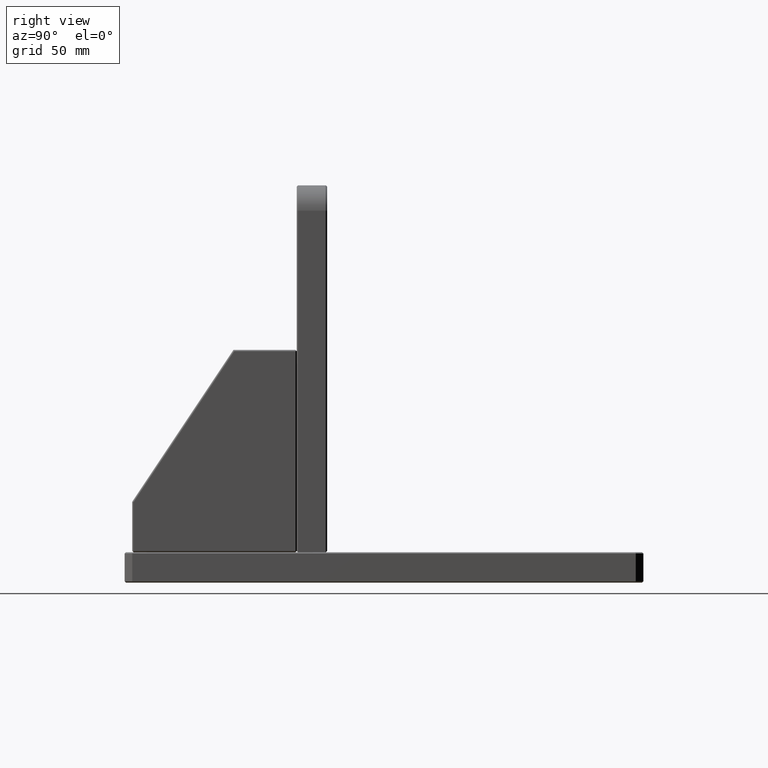
[diagram: clean part render]
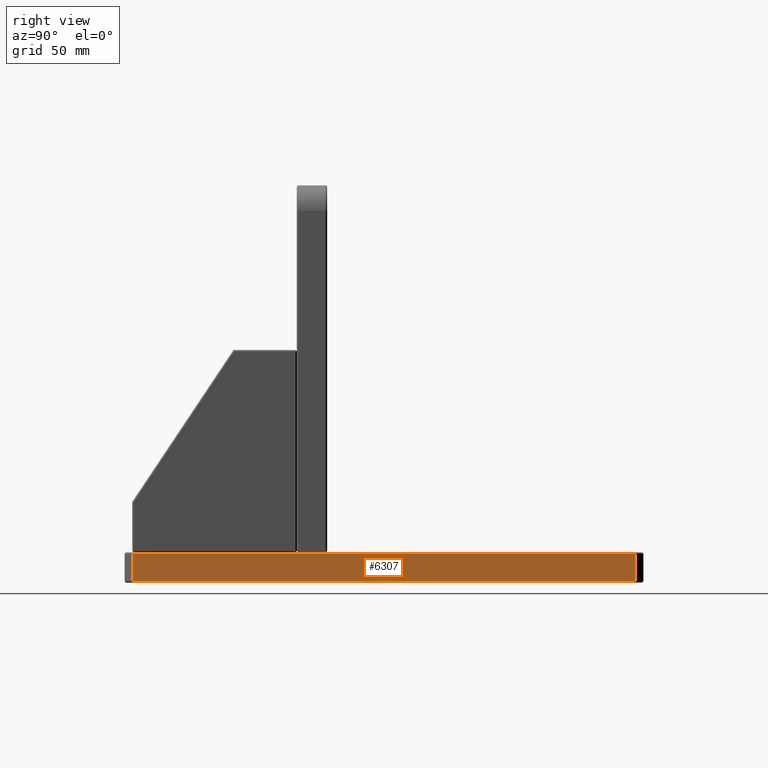
[diagram: same view with one face highlighted and labeled with its STEP entity id]
A machine part, right view. The second image highlights one B-rep face of the part: STEP entity #6307.
In plain terms, the highlighted planar face has unit normal (-1, 0, 0).
Its self-contained STEP definition (entity closure, byte-faithful):
#93 = EDGE_CURVE ( 'NONE', #7958, #12319, #801, .T. ) ;
#521 = VECTOR ( 'NONE', #7328, 1000.000000000000000 ) ;
#801 = LINE ( 'NONE', #11786, #521 ) ;
#1030 = CARTESIAN_POINT ( 'NONE',  ( 65.00000000000000000, 102.5000000000000000, 11.50000000000000000 ) ) ;
#1059 = DIRECTION ( 'NONE',  ( 0.0000000000000000000, 1.000000000000000000, 0.0000000000000000000 ) ) ;
#1634 = ORIENTED_EDGE ( 'NONE', *, *, #6890, .T. ) ;
#2089 = CARTESIAN_POINT ( 'NONE',  ( 65.00000000000000000, -99.49999999999998579, 11.49999999999999822 ) ) ;
#2129 = ORIENTED_EDGE ( 'NONE', *, *, #14656, .T. ) ;
#2342 = LINE ( 'NONE', #10462, #4666 ) ;
#2394 = LINE ( 'NONE', #1030, #8520 ) ;
#4666 = VECTOR ( 'NONE', #1059, 1000.000000000000000 ) ;
#4905 = CARTESIAN_POINT ( 'NONE',  ( 65.00000000000000000, 99.49999999999998579, 12.00000000000000000 ) ) ;
#5278 = ORIENTED_EDGE ( 'NONE', *, *, #93, .T. ) ;
#6307 = ADVANCED_FACE ( 'NONE', ( #11784 ), #14391, .F. ) ;
#6337 = DIRECTION ( 'NONE',  ( -1.000000000000000000, 0.0000000000000000000, 0.0000000000000000000 ) ) ;
#6890 = EDGE_CURVE ( 'NONE', #12319, #9956, #2342, .T. ) ;
#7328 = DIRECTION ( 'NONE',  ( 0.0000000000000000000, 0.0000000000000000000, -1.000000000000000000 ) ) ;
#7958 = VERTEX_POINT ( 'NONE', #2089 ) ;
#7986 = VERTEX_POINT ( 'NONE', #12709 ) ;
#8085 = CARTESIAN_POINT ( 'NONE',  ( 65.00000000000000000, 99.49999999999998579, 0.4999999999999726885 ) ) ;
#8520 = VECTOR ( 'NONE', #17058, 1000.000000000000000 ) ;
#8584 = VECTOR ( 'NONE', #15807, 1000.000000000000000 ) ;
#8929 = EDGE_CURVE ( 'NONE', #9956, #7986, #15715, .T. ) ;
#9956 = VERTEX_POINT ( 'NONE', #8085 ) ;
#10278 = CARTESIAN_POINT ( 'NONE',  ( 65.00000000000000000, 102.5000000000000000, 12.00000000000000000 ) ) ;
#10462 = CARTESIAN_POINT ( 'NONE',  ( 65.00000000000000000, 99.49999999999998579, 0.4999999999999726885 ) ) ;
#10511 = CARTESIAN_POINT ( 'NONE',  ( 65.00000000000000000, -99.49999999999998579, 0.4999999999999726885 ) ) ;
#11784 = FACE_OUTER_BOUND ( 'NONE', #14942, .T. ) ;
#11786 = CARTESIAN_POINT ( 'NONE',  ( 65.00000000000000000, -99.49999999999998579, 12.00000000000000000 ) ) ;
#11952 = DIRECTION ( 'NONE',  ( 0.0000000000000000000, 0.0000000000000000000, 1.000000000000000000 ) ) ;
#12319 = VERTEX_POINT ( 'NONE', #10511 ) ;
#12445 = ORIENTED_EDGE ( 'NONE', *, *, #8929, .T. ) ;
#12709 = CARTESIAN_POINT ( 'NONE',  ( 65.00000000000000000, 99.49999999999998579, 11.50000000000000000 ) ) ;
#14391 = PLANE ( 'NONE',  #15211 ) ;
#14656 = EDGE_CURVE ( 'NONE', #7986, #7958, #2394, .T. ) ;
#14942 = EDGE_LOOP ( 'NONE', ( #5278, #1634, #12445, #2129 ) ) ;
#15211 = AXIS2_PLACEMENT_3D ( 'NONE', #10278, #6337, #11952 ) ;
#15715 = LINE ( 'NONE', #4905, #8584 ) ;
#15807 = DIRECTION ( 'NONE',  ( 0.0000000000000000000, 0.0000000000000000000, 1.000000000000000000 ) ) ;
#17058 = DIRECTION ( 'NONE',  ( 0.0000000000000000000, -1.000000000000000000, 0.0000000000000000000 ) ) ;